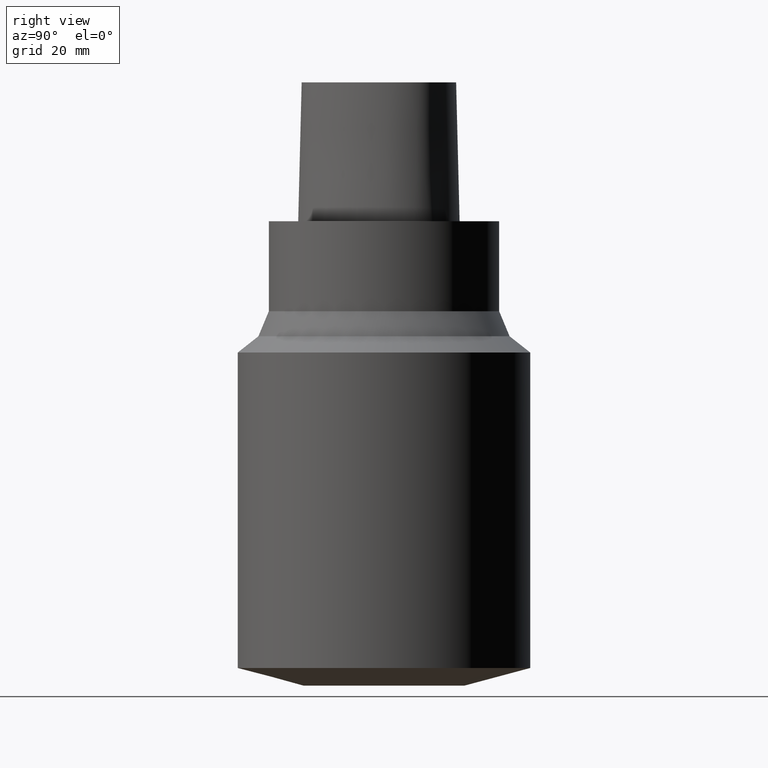
[diagram: clean part render]
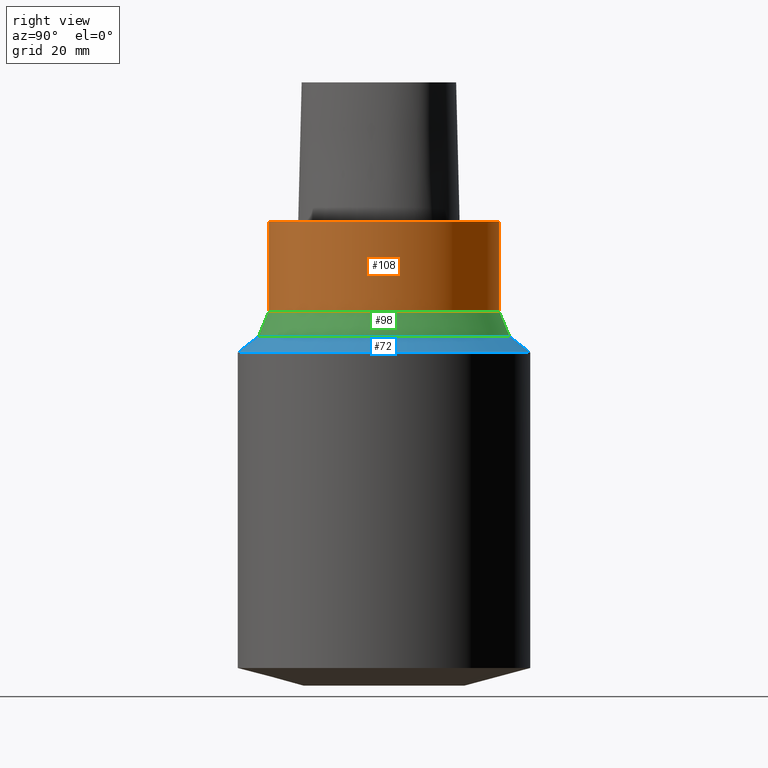
[diagram: same view with three faces highlighted in distinct colors, each labeled with its STEP entity id]
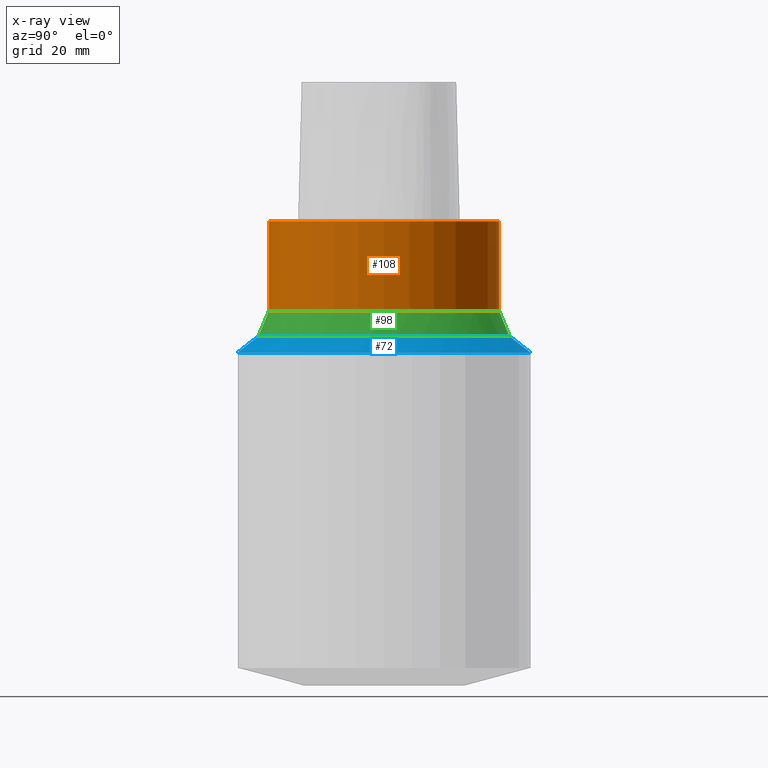
[diagram: x-ray of the same camera — body ghosted, the three highlighted faces saturated]
A machine part, right view with three faces highlighted in distinct colors.
The next image is the same camera in x-ray (body ghosted, the three faces saturated) — at least one of them is partly hidden behind the body in this view.
Their STEP definitions:

[orange] entity #108 — the highlighted cylindrical surface (bore or boss wall) has radius 31.5 mm, axis along (0, 0, -1).
#62=EDGE_CURVE('Unnamed[1]',#150,#150,#151,.T.);
#85=EDGE_CURVE('Unnamed[1]',#181,#181,#182,.T.);
#108=ADVANCED_FACE('Unnamed[1]',(#213,#214),#215,.T.);
#150=VERTEX_POINT('',#352);
#151=CIRCLE('',#353,31.5);
#181=VERTEX_POINT('',#480);
#182=CIRCLE('',#481,31.5);
#213=FACE_BOUND('',#537,.T.);
#214=FACE_BOUND('',#538,.T.);
#215=CYLINDRICAL_SURFACE('',#539,31.5);
#352=CARTESIAN_POINT('',(1.50597243309191E-015,31.5,-24.594396264138));
#353=AXIS2_PLACEMENT_3D('',#563,#564,#565);
#480=CARTESIAN_POINT('',(-3.88267476788467E-031,31.5,3.85763741731416E-015));
#481=AXIS2_PLACEMENT_3D('',#594,#595,#596);
#537=EDGE_LOOP('',(#631));
#538=EDGE_LOOP('',(#632));
#539=AXIS2_PLACEMENT_3D('',#633,#634,#635);
#563=CARTESIAN_POINT('',(1.50597243309191E-015,3.01194486618382E-015,-24.594396264138));
#564=DIRECTION('',(6.12323399573677E-017,1.22464679914735E-016,-1.0));
#565=DIRECTION('',(-1.23259516440783E-032,1.0,1.22464679914735E-016));
#594=CARTESIAN_POINT('',(0.0,0.0,0.0));
#595=DIRECTION('',(6.12323399573677E-017,1.22464679914735E-016,-1.0));
#596=DIRECTION('',(-1.23259516440783E-032,1.0,1.22464679914735E-016));
#631=ORIENTED_EDGE('',*,*,#62,.F.);
#632=ORIENTED_EDGE('',*,*,#85,.T.);
#633=CARTESIAN_POINT('',(7.52986216545955E-016,1.50597243309191E-015,-12.297198132069));
#634=DIRECTION('',(6.12323399573677E-017,1.22464679914735E-016,-1.0));
#635=DIRECTION('',(-1.23259516440783E-032,1.0,1.22464679914735E-016));

[blue] entity #72 — the highlighted conical surface has half-angle 51.785 deg.
#72=ADVANCED_FACE('Unnamed[1]',(#162,#163),#164,.T.);
#80=EDGE_CURVE('Unnamed[1]',#174,#174,#175,.T.);
#87=EDGE_CURVE('Unnamed[1]',#184,#184,#185,.T.);
#162=FACE_BOUND('',#457,.T.);
#163=FACE_BOUND('',#458,.T.);
#164=CONICAL_SURFACE('',#459,37.1747810008946,0.903819641351559);
#174=VERTEX_POINT('',#471);
#175=CIRCLE('',#472,40.0000000000324);
#184=VERTEX_POINT('',#484);
#185=CIRCLE('',#485,34.3495620017568);
#457=EDGE_LOOP('',(#573));
#458=EDGE_LOOP('',(#574));
#459=AXIS2_PLACEMENT_3D('',#575,#576,#577);
#471=CARTESIAN_POINT('',(2.19742975838125E-015,40.0000000000324,-35.8867513459584));
#472=AXIS2_PLACEMENT_3D('',#585,#586,#587);
#484=CARTESIAN_POINT('',(1.92501663402437E-015,34.3495620017568,-31.4379074091345));
#485=AXIS2_PLACEMENT_3D('',#597,#598,#599);
#573=ORIENTED_EDGE('',*,*,#80,.F.);
#574=ORIENTED_EDGE('',*,*,#87,.T.);
#575=CARTESIAN_POINT('',(2.06122319620281E-015,4.12244639240562E-015,-33.6623293775464));
#576=DIRECTION('',(6.12323399573677E-017,1.22464679914735E-016,-1.0));
#577=DIRECTION('',(-1.23259516440783E-032,1.0,1.22464679914735E-016));
#585=CARTESIAN_POINT('',(2.19742975838125E-015,4.39485951676249E-015,-35.8867513459584));
#586=DIRECTION('',(6.12323399573677E-017,1.22464679914735E-016,-1.0));
#587=DIRECTION('',(-1.23259516440783E-032,1.0,1.22464679914735E-016));
#597=CARTESIAN_POINT('',(1.92501663402437E-015,3.85003326804874E-015,-31.4379074091345));
#598=DIRECTION('',(6.12323399573677E-017,1.22464679914735E-016,-1.0));
#599=DIRECTION('',(-1.23259516440783E-032,1.0,1.22464679914735E-016));

[green] entity #98 — the highlighted conical surface has half-angle 22.606 deg.
#62=EDGE_CURVE('Unnamed[1]',#150,#150,#151,.T.);
#87=EDGE_CURVE('Unnamed[1]',#184,#184,#185,.T.);
#98=ADVANCED_FACE('Unnamed[1]',(#199,#200),#201,.T.);
#150=VERTEX_POINT('',#352);
#151=CIRCLE('',#353,31.5);
#184=VERTEX_POINT('',#484);
#185=CIRCLE('',#485,34.3495620017568);
#199=FACE_BOUND('',#518,.T.);
#200=FACE_BOUND('',#519,.T.);
#201=CONICAL_SURFACE('',#520,32.9247810008784,0.394554409968622);
#352=CARTESIAN_POINT('',(1.50597243309191E-015,31.5,-24.594396264138));
#353=AXIS2_PLACEMENT_3D('',#563,#564,#565);
#484=CARTESIAN_POINT('',(1.92501663402437E-015,34.3495620017568,-31.4379074091345));
#485=AXIS2_PLACEMENT_3D('',#597,#598,#599);
#518=EDGE_LOOP('',(#614));
#519=EDGE_LOOP('',(#615));
#520=AXIS2_PLACEMENT_3D('',#616,#617,#618);
#563=CARTESIAN_POINT('',(1.50597243309191E-015,3.01194486618382E-015,-24.594396264138));
#564=DIRECTION('',(6.12323399573677E-017,1.22464679914735E-016,-1.0));
#565=DIRECTION('',(-1.23259516440783E-032,1.0,1.22464679914735E-016));
#597=CARTESIAN_POINT('',(1.92501663402437E-015,3.85003326804874E-015,-31.4379074091345));
#598=DIRECTION('',(6.12323399573677E-017,1.22464679914735E-016,-1.0));
#599=DIRECTION('',(-1.23259516440783E-032,1.0,1.22464679914735E-016));
#614=ORIENTED_EDGE('',*,*,#87,.F.);
#615=ORIENTED_EDGE('',*,*,#62,.T.);
#616=CARTESIAN_POINT('',(1.71549453355814E-015,3.43098906711628E-015,-28.0161518366362));
#617=DIRECTION('',(6.12323399573677E-017,1.22464679914735E-016,-1.0));
#618=DIRECTION('',(-1.23259516440783E-032,1.0,1.22464679914735E-016));